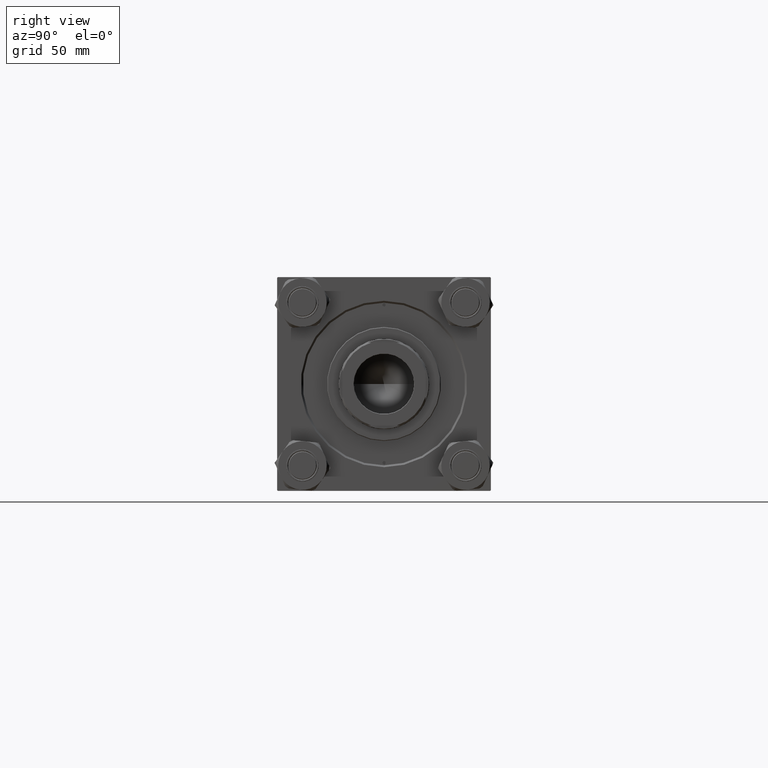
[diagram: clean part render]
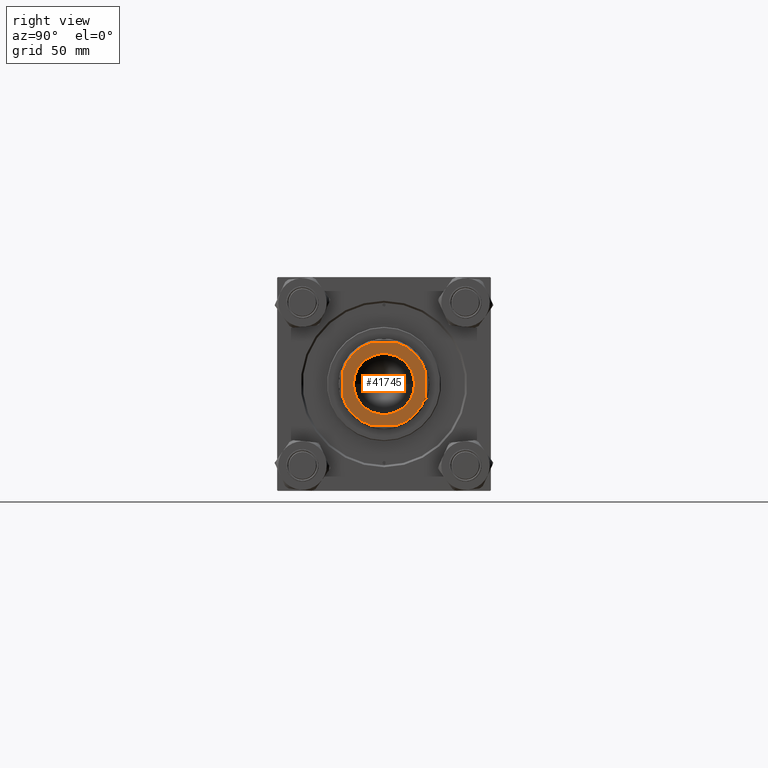
[diagram: same view with one face highlighted and labeled with its STEP entity id]
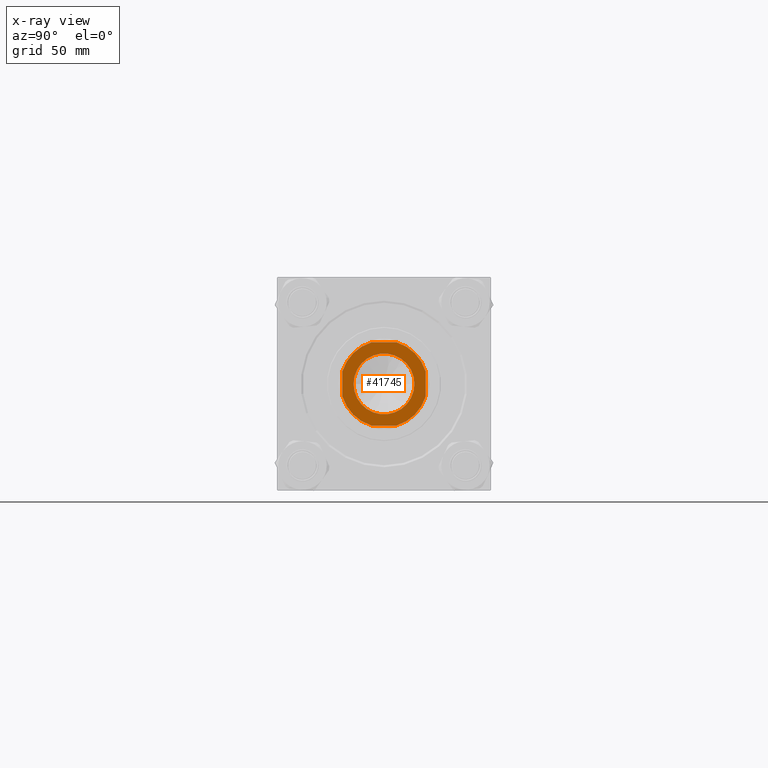
[diagram: x-ray of the same camera — body ghosted, the highlighted face saturated]
A machine part, right view. The second image highlights one B-rep face of the part: STEP entity #41745.
The next image is the same camera in x-ray: the body ghosted, the highlighted face saturated — about 0% of this face is hidden behind the body in this view.
In plain terms, the highlighted planar face has unit normal (1, 0, -0).
Its self-contained STEP definition (entity closure, byte-faithful):
#179 = AXIS2_PLACEMENT_3D ( 'NONE', #5313, #24691, #44851 ) ;
#285 = AXIS2_PLACEMENT_3D ( 'NONE', #4983, #24618, #16965 ) ;
#1210 = DIRECTION ( 'NONE',  ( 1.084202172485504434E-16, -1.000000000000000000, 0.000000000000000000 ) ) ;
#1462 = DIRECTION ( 'NONE',  ( -0.000000000000000000, 0.000000000000000000, 1.000000000000000000 ) ) ;
#1536 = CIRCLE ( 'NONE', #46351, 33.50000000000009948 ) ;
#1563 = DIRECTION ( 'NONE',  ( -1.000000000000000000, -0.000000000000000000, -0.000000000000000000 ) ) ;
#1575 = DIRECTION ( 'NONE',  ( -0.000000000000000000, 0.000000000000000000, 1.000000000000000000 ) ) ;
#1941 = VERTEX_POINT ( 'NONE', #48321 ) ;
#3248 = CARTESIAN_POINT ( 'NONE',  ( -9.912113800799417618, 32.00000000000000000, 377.0000000000000000 ) ) ;
#3429 = CIRCLE ( 'NONE', #179, 23.55000000000001492 ) ;
#3444 = VERTEX_POINT ( 'NONE', #13174 ) ;
#3538 = CARTESIAN_POINT ( 'NONE',  ( 23.55000000000001492, 0.000000000000000000, 377.0000000000000000 ) ) ;
#3744 = CARTESIAN_POINT ( 'NONE',  ( 0.000000000000000000, 0.000000000000000000, 377.0000000000000000 ) ) ;
#4658 = CARTESIAN_POINT ( 'NONE',  ( 0.000000000000000000, 0.000000000000000000, 377.0000000000000000 ) ) ;
#4894 = LINE ( 'NONE', #27609, #22473 ) ;
#4925 = VECTOR ( 'NONE', #41645, 1000.000000000000000 ) ;
#4983 = CARTESIAN_POINT ( 'NONE',  ( 0.000000000000000000, 0.000000000000000000, 377.0000000000000000 ) ) ;
#5313 = CARTESIAN_POINT ( 'NONE',  ( 0.000000000000000000, 0.000000000000000000, 377.0000000000000000 ) ) ;
#6371 = EDGE_CURVE ( 'NONE', #37741, #25196, #8400, .T. ) ;
#6860 = ORIENTED_EDGE ( 'NONE', *, *, #17634, .T. ) ;
#7549 = CARTESIAN_POINT ( 'NONE',  ( 0.000000000000000000, 0.000000000000000000, 377.0000000000000000 ) ) ;
#7995 = CARTESIAN_POINT ( 'NONE',  ( -9.912113800799440710, -32.00000000000000000, 377.0000000000000000 ) ) ;
#8100 = EDGE_LOOP ( 'NONE', ( #31585, #9938 ) ) ;
#8400 = CIRCLE ( 'NONE', #35298, 33.49999999999997868 ) ;
#8638 = CARTESIAN_POINT ( 'NONE',  ( 0.000000000000000000, 0.000000000000000000, 377.0000000000000000 ) ) ;
#9938 = ORIENTED_EDGE ( 'NONE', *, *, #22608, .T. ) ;
#10560 = VERTEX_POINT ( 'NONE', #30606 ) ;
#10567 = LINE ( 'NONE', #24425, #31111 ) ;
#11545 = ORIENTED_EDGE ( 'NONE', *, *, #20920, .T. ) ;
#11940 = FACE_BOUND ( 'NONE', #8100, .T. ) ;
#12511 = ORIENTED_EDGE ( 'NONE', *, *, #40411, .T. ) ;
#12778 = VECTOR ( 'NONE', #33075, 1000.000000000000000 ) ;
#12947 = VERTEX_POINT ( 'NONE', #14475 ) ;
#13174 = CARTESIAN_POINT ( 'NONE',  ( 32.00000000000000000, -9.912113800799843943, 377.0000000000000000 ) ) ;
#13419 = VERTEX_POINT ( 'NONE', #21242 ) ;
#14134 = EDGE_CURVE ( 'NONE', #41765, #3444, #1536, .T. ) ;
#14320 = CARTESIAN_POINT ( 'NONE',  ( 31.99999999999999289, 32.00000000000000000, 377.0000000000000000 ) ) ;
#14475 = CARTESIAN_POINT ( 'NONE',  ( 32.00000000000000000, 9.912113800799914998, 377.0000000000000000 ) ) ;
#16965 = DIRECTION ( 'NONE',  ( 1.000000000000000000, 0.000000000000000000, 0.000000000000000000 ) ) ;
#17634 = EDGE_CURVE ( 'NONE', #3444, #12947, #49290, .T. ) ;
#18570 = DIRECTION ( 'NONE',  ( 1.000000000000000000, 0.000000000000000000, 0.000000000000000000 ) ) ;
#19513 = DIRECTION ( 'NONE',  ( -0.000000000000000000, 0.000000000000000000, 1.000000000000000000 ) ) ;
#20333 = DIRECTION ( 'NONE',  ( 1.000000000000000000, 0.000000000000000000, 0.000000000000000000 ) ) ;
#20920 = EDGE_CURVE ( 'NONE', #13419, #37741, #10567, .T. ) ;
#21242 = CARTESIAN_POINT ( 'NONE',  ( -32.00000000000000711, 9.912113800799412289, 377.0000000000000000 ) ) ;
#21313 = ORIENTED_EDGE ( 'NONE', *, *, #48863, .T. ) ;
#22281 = CIRCLE ( 'NONE', #285, 23.55000000000001492 ) ;
#22406 = AXIS2_PLACEMENT_3D ( 'NONE', #8638, #1462, #20333 ) ;
#22473 = VECTOR ( 'NONE', #1563, 1000.000000000000000 ) ;
#22608 = EDGE_CURVE ( 'NONE', #10560, #33133, #3429, .T. ) ;
#22775 = DIRECTION ( 'NONE',  ( -0.000000000000000000, 0.000000000000000000, 1.000000000000000000 ) ) ;
#23407 = EDGE_LOOP ( 'NONE', ( #6860, #32583, #24828, #12511, #11545, #27483, #21313, #30187 ) ) ;
#24422 = PLANE ( 'NONE',  #22406 ) ;
#24425 = CARTESIAN_POINT ( 'NONE',  ( -32.00000000000000711, 32.00000000000000000, 377.0000000000000000 ) ) ;
#24618 = DIRECTION ( 'NONE',  ( 0.000000000000000000, -0.000000000000000000, -1.000000000000000000 ) ) ;
#24691 = DIRECTION ( 'NONE',  ( 0.000000000000000000, -0.000000000000000000, -1.000000000000000000 ) ) ;
#24828 = ORIENTED_EDGE ( 'NONE', *, *, #46609, .T. ) ;
#25196 = VERTEX_POINT ( 'NONE', #7995 ) ;
#27483 = ORIENTED_EDGE ( 'NONE', *, *, #6371, .T. ) ;
#27609 = CARTESIAN_POINT ( 'NONE',  ( -32.00000000000000711, 32.00000000000000000, 377.0000000000000000 ) ) ;
#28372 = DIRECTION ( 'NONE',  ( 1.000000000000000000, 0.000000000000000000, 0.000000000000000000 ) ) ;
#30187 = ORIENTED_EDGE ( 'NONE', *, *, #14134, .T. ) ;
#30546 = AXIS2_PLACEMENT_3D ( 'NONE', #4658, #1575, #28372 ) ;
#30606 = CARTESIAN_POINT ( 'NONE',  ( -23.55000000000001492, 2.884043211992018577E-15, 377.0000000000000000 ) ) ;
#30951 = EDGE_CURVE ( 'NONE', #33133, #10560, #22281, .T. ) ;
#31111 = VECTOR ( 'NONE', #1210, 1000.000000000000000 ) ;
#31585 = ORIENTED_EDGE ( 'NONE', *, *, #30951, .T. ) ;
#32358 = FACE_OUTER_BOUND ( 'NONE', #23407, .T. ) ;
#32483 = CIRCLE ( 'NONE', #39019, 33.50000000000012079 ) ;
#32583 = ORIENTED_EDGE ( 'NONE', *, *, #39492, .T. ) ;
#33075 = DIRECTION ( 'NONE',  ( 1.000000000000000000, 0.000000000000000000, 0.000000000000000000 ) ) ;
#33133 = VERTEX_POINT ( 'NONE', #3538 ) ;
#34401 = DIRECTION ( 'NONE',  ( -0.000000000000000000, 0.000000000000000000, 1.000000000000000000 ) ) ;
#35117 = DIRECTION ( 'NONE',  ( 1.000000000000000000, 0.000000000000000000, 0.000000000000000000 ) ) ;
#35298 = AXIS2_PLACEMENT_3D ( 'NONE', #7549, #19513, #35117 ) ;
#35548 = VERTEX_POINT ( 'NONE', #3248 ) ;
#37741 = VERTEX_POINT ( 'NONE', #46241 ) ;
#39019 = AXIS2_PLACEMENT_3D ( 'NONE', #3744, #34401, #18570 ) ;
#39492 = EDGE_CURVE ( 'NONE', #12947, #1941, #32483, .T. ) ;
#40411 = EDGE_CURVE ( 'NONE', #35548, #13419, #46821, .T. ) ;
#41645 = DIRECTION ( 'NONE',  ( -1.084202172485504434E-16, 1.000000000000000000, -0.000000000000000000 ) ) ;
#41745 = ADVANCED_FACE ( 'NONE', ( #11940, #32358 ), #24422, .T. ) ;
#41765 = VERTEX_POINT ( 'NONE', #43088 ) ;
#43088 = CARTESIAN_POINT ( 'NONE',  ( 9.912113800799845720, -32.00000000000000000, 377.0000000000000000 ) ) ;
#44553 = LINE ( 'NONE', #48381, #12778 ) ;
#44851 = DIRECTION ( 'NONE',  ( 1.000000000000000000, 0.000000000000000000, 0.000000000000000000 ) ) ;
#46241 = CARTESIAN_POINT ( 'NONE',  ( -32.00000000000000000, -9.912113800799444263, 377.0000000000000000 ) ) ;
#46351 = AXIS2_PLACEMENT_3D ( 'NONE', #49590, #22775, #49331 ) ;
#46609 = EDGE_CURVE ( 'NONE', #1941, #35548, #4894, .T. ) ;
#46821 = CIRCLE ( 'NONE', #30546, 33.49999999999997158 ) ;
#48321 = CARTESIAN_POINT ( 'NONE',  ( 9.912113800799913221, 32.00000000000000000, 377.0000000000000000 ) ) ;
#48381 = CARTESIAN_POINT ( 'NONE',  ( -32.00000000000000000, -32.00000000000000000, 377.0000000000000000 ) ) ;
#48863 = EDGE_CURVE ( 'NONE', #25196, #41765, #44553, .T. ) ;
#49290 = LINE ( 'NONE', #14320, #4925 ) ;
#49331 = DIRECTION ( 'NONE',  ( 1.000000000000000000, 0.000000000000000000, 0.000000000000000000 ) ) ;
#49590 = CARTESIAN_POINT ( 'NONE',  ( 0.000000000000000000, 0.000000000000000000, 377.0000000000000000 ) ) ;